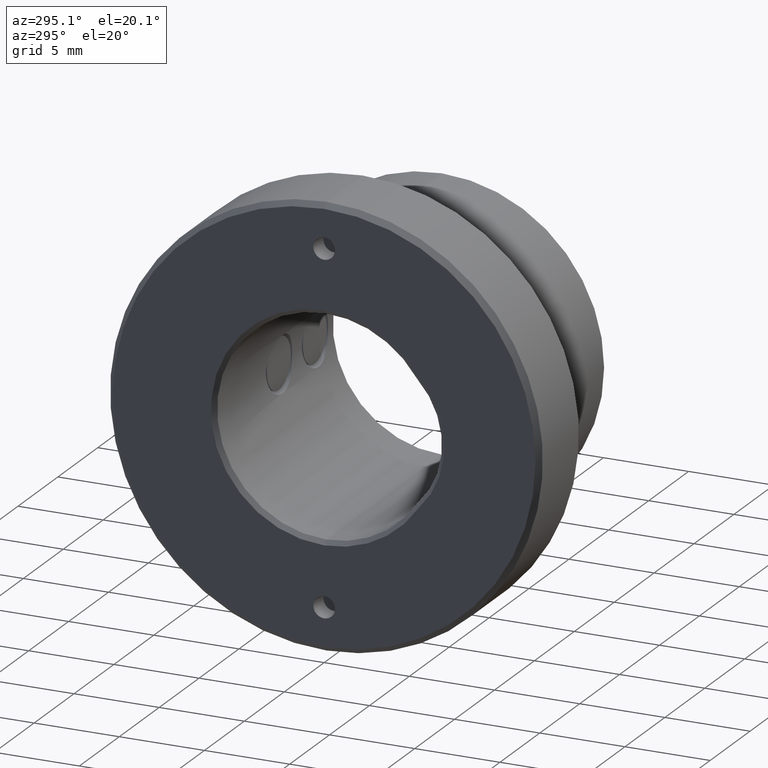
[diagram: clean part render]
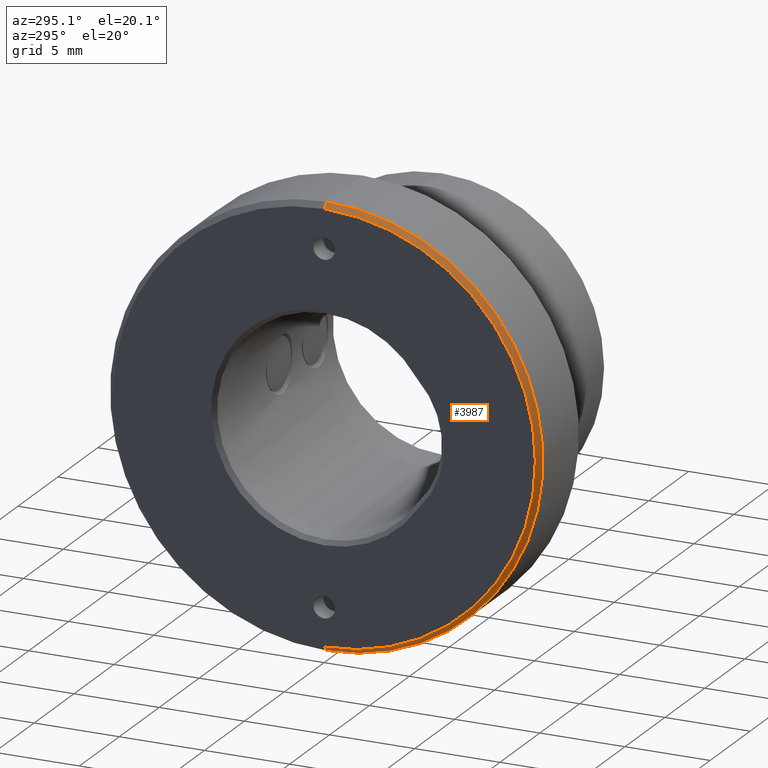
[diagram: same view with one face highlighted and labeled with its STEP entity id]
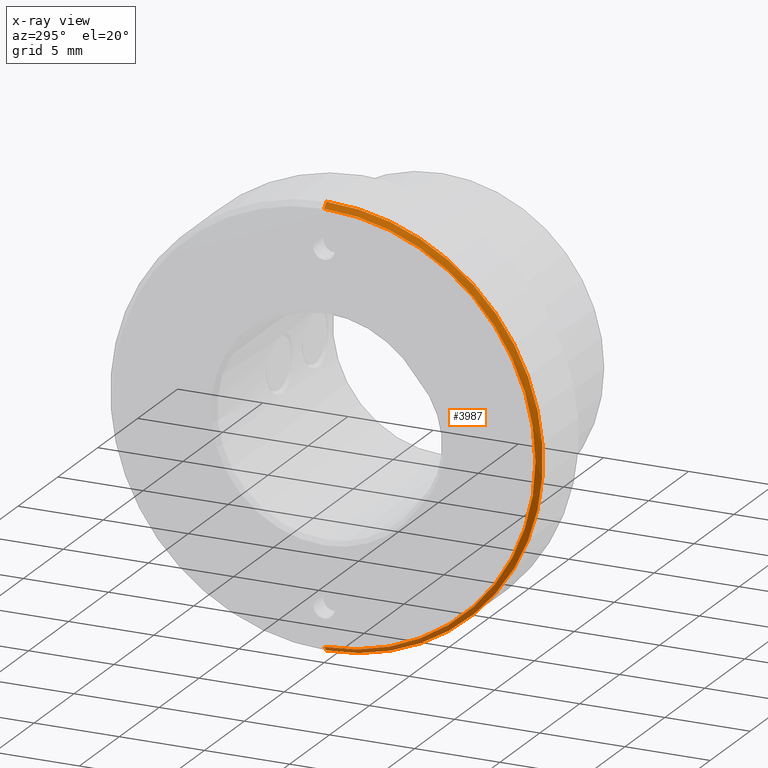
[diagram: x-ray of the same camera — body ghosted, the highlighted face saturated]
A machine part, auxiliary view. The second image highlights one B-rep face of the part: STEP entity #3987.
The next image is the same camera in x-ray: the body ghosted, the highlighted face saturated — about 0% of this face is hidden behind the body in this view.
In plain terms, the highlighted conical surface has half-angle 45 deg.
Its self-contained STEP definition (entity closure, byte-faithful):
#7 = AXIS2_PLACEMENT_3D ( 'NONE', #705, #4483, #4503 ) ;
#12 = VECTOR ( 'NONE', #3179, 1000.000000000000114 ) ;
#121 = VERTEX_POINT ( 'NONE', #1655 ) ;
#142 = EDGE_CURVE ( 'NONE', #3660, #121, #2544, .T. ) ;
#511 = CARTESIAN_POINT ( 'NONE',  ( 0.000000000000000000, 0.000000000000000000, 0.000000000000000000 ) ) ;
#609 = AXIS2_PLACEMENT_3D ( 'NONE', #511, #3879, #1670 ) ;
#639 = ORIENTED_EDGE ( 'NONE', *, *, #4404, .F. ) ;
#705 = CARTESIAN_POINT ( 'NONE',  ( 0.2999999999999964362, 0.000000000000000000, 0.000000000000000000 ) ) ;
#838 = DIRECTION ( 'NONE',  ( 0.000000000000000000, 0.000000000000000000, -1.000000000000000000 ) ) ;
#1085 = EDGE_CURVE ( 'NONE', #2389, #1394, #4859, .T. ) ;
#1112 = LINE ( 'NONE', #2935, #3424 ) ;
#1170 = CARTESIAN_POINT ( 'NONE',  ( 0.000000000000000000, 1.536931732929928397E-15, 12.40000000000000213 ) ) ;
#1311 = CARTESIAN_POINT ( 'NONE',  ( 0.2999999999999964362, 0.000000000000000000, -12.69999999999999929 ) ) ;
#1380 = ORIENTED_EDGE ( 'NONE', *, *, #3627, .T. ) ;
#1394 = VERTEX_POINT ( 'NONE', #1170 ) ;
#1403 = CARTESIAN_POINT ( 'NONE',  ( 0.000000000000000000, 0.000000000000000000, -12.40000000000000213 ) ) ;
#1655 = CARTESIAN_POINT ( 'NONE',  ( 0.2999999999999964362, 1.555301434917138433E-15, -12.69999999999999929 ) ) ;
#1668 = CARTESIAN_POINT ( 'NONE',  ( 0.2999999999999964362, 0.000000000000000000, 12.69999999999999929 ) ) ;
#1670 = DIRECTION ( 'NONE',  ( 0.000000000000000000, 0.000000000000000000, -1.000000000000000000 ) ) ;
#1973 = DIRECTION ( 'NONE',  ( 1.000000000000000000, -0.000000000000000000, -0.000000000000000000 ) ) ;
#2087 = CONICAL_SURFACE ( 'NONE', #7, 12.69999999999999929, 0.7853981633974511656 ) ;
#2389 = VERTEX_POINT ( 'NONE', #1403 ) ;
#2544 = CIRCLE ( 'NONE', #3170, 12.69999999999999929 ) ;
#2605 = FACE_OUTER_BOUND ( 'NONE', #4722, .T. ) ;
#2685 = CARTESIAN_POINT ( 'NONE',  ( 0.2999999999999964362, 0.000000000000000000, 0.000000000000000000 ) ) ;
#2935 = CARTESIAN_POINT ( 'NONE',  ( 0.2999999999999964362, 1.555301434917138433E-15, 12.69999999999999929 ) ) ;
#3114 = ORIENTED_EDGE ( 'NONE', *, *, #142, .F. ) ;
#3170 = AXIS2_PLACEMENT_3D ( 'NONE', #2685, #1973, #838 ) ;
#3179 = DIRECTION ( 'NONE',  ( 0.7071067811865455743, 0.000000000000000000, -0.7071067811865495711 ) ) ;
#3424 = VECTOR ( 'NONE', #4109, 1000.000000000000114 ) ;
#3627 = EDGE_CURVE ( 'NONE', #2389, #121, #3910, .T. ) ;
#3660 = VERTEX_POINT ( 'NONE', #1668 ) ;
#3879 = DIRECTION ( 'NONE',  ( -1.000000000000000000, -0.000000000000000000, -0.000000000000000000 ) ) ;
#3910 = LINE ( 'NONE', #1311, #12 ) ;
#3947 = ORIENTED_EDGE ( 'NONE', *, *, #1085, .F. ) ;
#3987 = ADVANCED_FACE ( 'NONE', ( #2605 ), #2087, .T. ) ;
#4109 = DIRECTION ( 'NONE',  ( 0.7071067811865455743, 8.659560562354957510E-17, 0.7071067811865495711 ) ) ;
#4404 = EDGE_CURVE ( 'NONE', #1394, #3660, #1112, .T. ) ;
#4483 = DIRECTION ( 'NONE',  ( 1.000000000000000000, -0.000000000000000000, -0.000000000000000000 ) ) ;
#4503 = DIRECTION ( 'NONE',  ( 0.000000000000000000, 0.000000000000000000, -1.000000000000000000 ) ) ;
#4722 = EDGE_LOOP ( 'NONE', ( #639, #3947, #1380, #3114 ) ) ;
#4859 = CIRCLE ( 'NONE', #609, 12.40000000000000213 ) ;